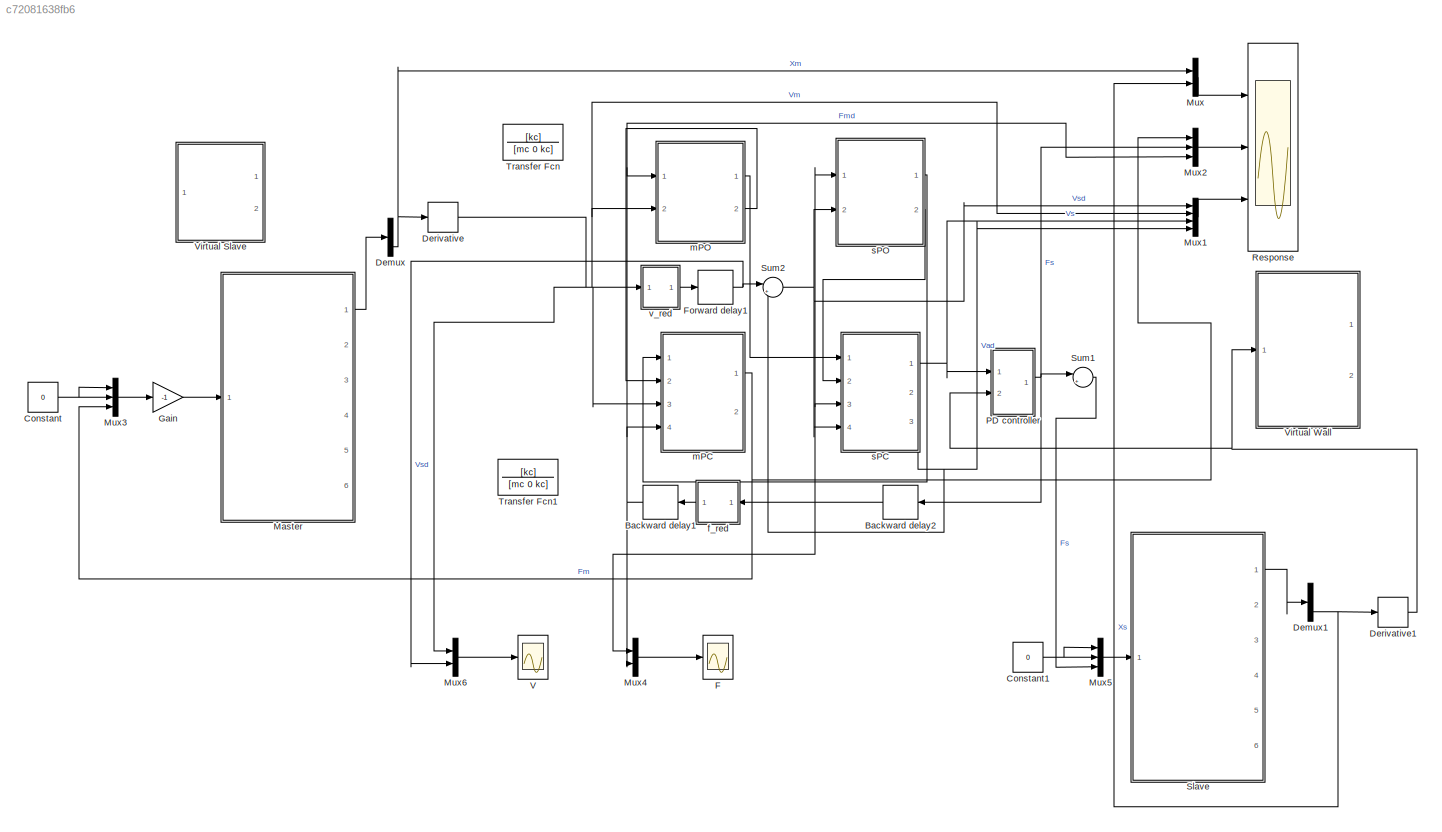
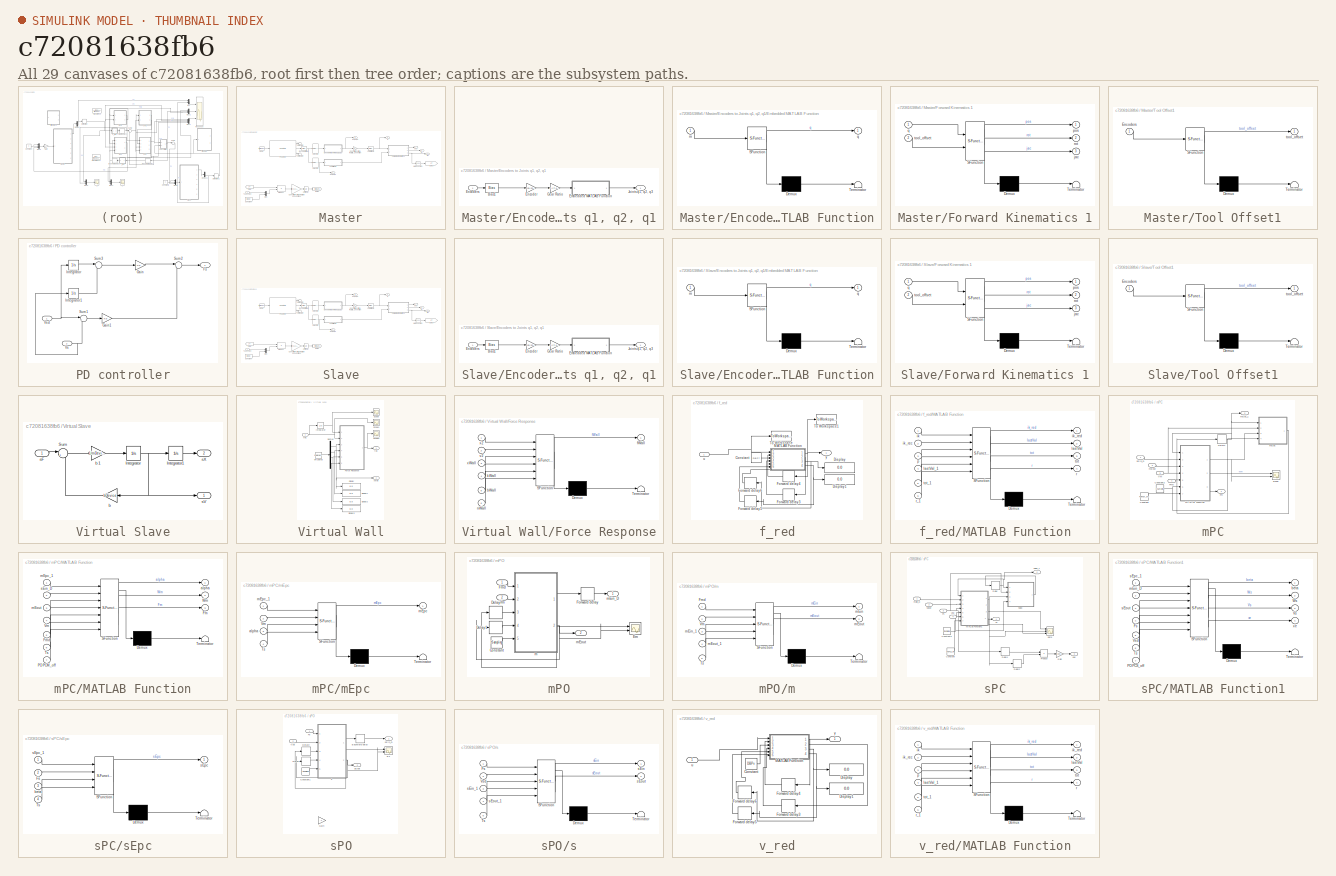
[diagram: thumbnail index - all 29 canvases of the model, root first then tree order]
MODEL slx_c72081638fb6
KIND model
BLOCK [Delay] Backward delay1
  DelayLength = T2
  InitialCondition = 0
  InputPortMap = u0
  Ports = [1, 1]
  SampleTime = tSampling
BLOCK [Delay] Backward delay2
  DelayLength = 1
  InitialCondition = 0
  InputPortMap = u0
  Ports = [1, 1]
  SampleTime = tSampling
BLOCK [Constant] Constant
  Value = 0
BLOCK [Constant] Constant1
  Value = 0
BLOCK [Demux] Demux
  DisplayOption = bar
  Outputs = 3
  Ports = [1, 3]
BLOCK [Demux] Demux1
  DisplayOption = bar
  Outputs = 3
  Ports = [1, 3]
BLOCK [Derivative] Derivative
BLOCK [Derivative] Derivative1
BLOCK [Scope] F
  DataFormat = Array
  Decimation = 1
  Grid = on
  LimitDataPoints = off
  MaxDataPoints = 5000
  Ports = [1]
  SampleInput = off
  SampleTime = -1
  SaveName = F1
  SaveToWorkspace = off
  ShowLegends = on
  TickLabels = OneTimeTick
  TimeRange = 100
  YMax = 15.33258
  YMin = -4.35585
  ZoomMode = on
BLOCK [Delay] Forward delay1
  DelayLength = T1
  InitialCondition = 0
  InputPortMap = u0
  Ports = [1, 1]
  SampleTime = tSampling
BLOCK [Gain] Gain
  Gain = -1
  OutDataTypeStr = Inherit: Inherit via internal rule
  ParamDataTypeStr = Inherit: Inherit via internal rule
  SaturateOnIntegerOverflow = off
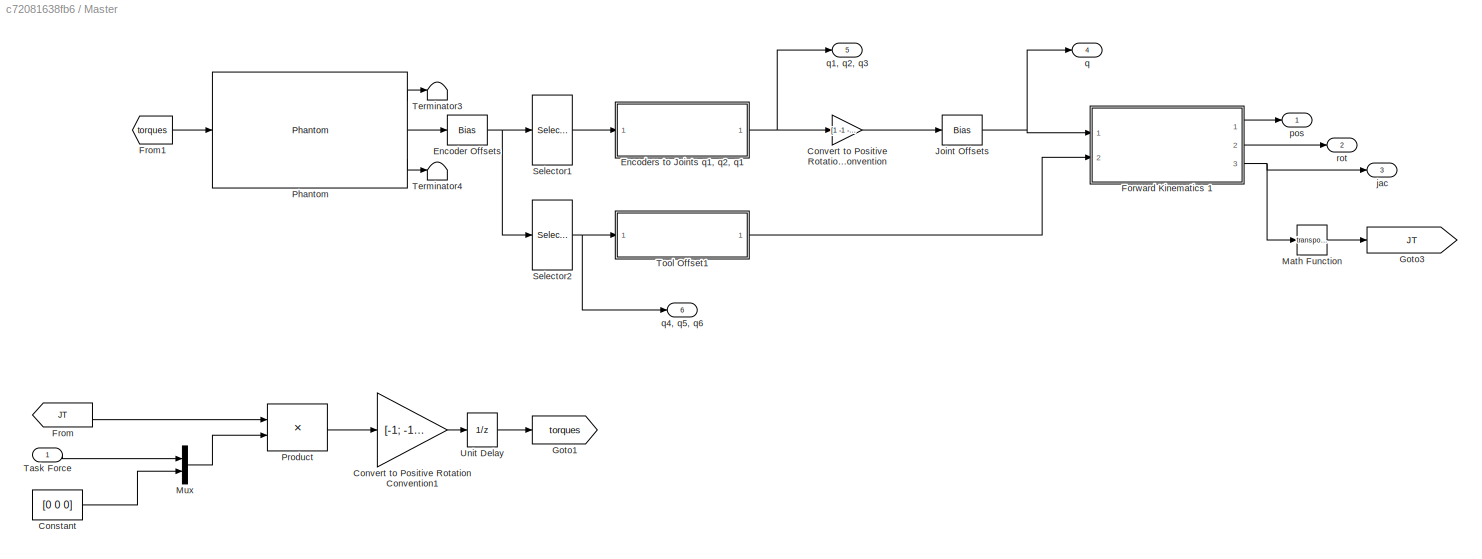
BLOCK [SubSystem] Master
  FunctionWithSeparateData = off
  MaskHideContents = off
  MinAlgLoopOccurrences = off
  Opaque = off
  Ports = [1, 6]
  PropExecContextOutsideSubsystem = off
  RTWSystemCode = Auto
  RequestExecContextInheritance = off
  Variant = off
BLOCK [Constant] Master/Constant
  Value = [0 0 0]
BLOCK [Gain] Master/Convert to Positive Rotation Convention
  Gain = [1 -1 -1]
  OutDataTypeStr = Inherit: Inherit via internal rule
  ParamDataTypeStr = Inherit: Inherit via internal rule
  SaturateOnIntegerOverflow = off
BLOCK [Gain] Master/Convert to Positive Rotation Convention1
  Gain = [-1; -1 ;-1]
  OutDataTypeStr = Inherit: Inherit via internal rule
  ParamDataTypeStr = Inherit: Inherit via internal rule
  SaturateOnIntegerOverflow = off
BLOCK [Bias] Master/Encoder Offsets
  Bias = [0 659 914 0 -1000 0]
  SaturateOnIntegerOverflow = off
BLOCK [SubSystem] Master/Encoders to Joints q1, q2, q1
  FunctionWithSeparateData = off
  MaskHideContents = off
  MinAlgLoopOccurrences = off
  Opaque = off
  Ports = [1, 1]
  PropExecContextOutsideSubsystem = off
  RTWSystemCode = Auto
  RequestExecContextInheritance = off
  Variant = off
BLOCK [Bias] Master/Encoders to Joints q1, q2, q1/Bias1
  Bias = [0 -659 -910]
  SaturateOnIntegerOverflow = off
BLOCK [SubSystem] Master/Encoders to Joints q1, q2, q1/Embedded MATLAB Function
  ErrorFcn = Stateflow.Translate.translate
  FunctionWithSeparateData = off
  MaskHideContents = off
  MinAlgLoopOccurrences = off
  Opaque = off
  PermitHierarchicalResolution = ParametersOnly
  Ports = [1, 1]
  PropExecContextOutsideSubsystem = off
  RTWSystemCode = Auto
  RequestExecContextInheritance = off
  SFBlockType = MATLAB Function
  TreatAsAtomicUnit = on
  Variant = off
BLOCK [Demux] Master/Encoders to Joints q1, q2, q1/Embedded MATLAB Function/ Demux 
  Outputs = 1
  Ports = [1, 1]
BLOCK [S-Function] Master/Encoders to Joints q1, q2, q1/Embedded MATLAB Function/ SFunction 
  EnableBusSupport = on
  FunctionName = sf_sfun
  PortCounts = [1 2]
  Ports = [1, 2]
  SFunctionDeploymentMode = off
  Tag = Stateflow S-Function TDPA_PD 10
BLOCK [Terminator] Master/Encoders to Joints q1, q2, q1/Embedded MATLAB Function/ Terminator 
BLOCK [Inport] Master/Encoders to Joints q1, q2, q1/Embedded MATLAB Function/m
  IconDisplay = Port number
BLOCK [Outport] Master/Encoders to Joints q1, q2, q1/Embedded MATLAB Function/q
  IconDisplay = Port number
BLOCK [Gain] Master/Encoders to Joints q1, q2, q1/Encoder
  Gain = 2*pi/2048
  OutDataTypeStr = Inherit: Inherit via internal rule
  ParamDataTypeStr = Inherit: Inherit via internal rule
  SaturateOnIntegerOverflow = off
BLOCK [Inport] Master/Encoders to Joints q1, q2, q1/Encoders
  IconDisplay = Port number
BLOCK [Gain] Master/Encoders to Joints q1, q2, q1/Gear Ratio
  Gain = 1./[7.461 -7.519 7.529]
  OutDataTypeStr = Inherit: Inherit via internal rule
  ParamDataTypeStr = Inherit: Inherit via internal rule
  SaturateOnIntegerOverflow = off
BLOCK [Outport] Master/Encoders to Joints q1, q2, q1/Joints q1, q2, q3
  IconDisplay = Port number
BLOCK [SubSystem] Master/Forward Kinematics 1
  ErrorFcn = Stateflow.Translate.translate
  FunctionWithSeparateData = off
  MaskHideContents = off
  MinAlgLoopOccurrences = off
  Opaque = off
  PermitHierarchicalResolution = ParametersOnly
  Ports = [2, 3]
  PropExecContextOutsideSubsystem = off
  RTWSystemCode = Auto
  RequestExecContextInheritance = off
  SFBlockType = MATLAB Function
  TreatAsAtomicUnit = on
  Variant = off
BLOCK [Demux] Master/Forward Kinematics 1/ Demux 
  Outputs = 1
  Ports = [1, 1]
BLOCK [S-Function] Master/Forward Kinematics 1/ SFunction 
  EnableBusSupport = on
  FunctionName = sf_sfun
  PortCounts = [2 4]
  Ports = [2, 4]
  SFunctionDeploymentMode = off
  Tag = Stateflow S-Function TDPA_PD 11
BLOCK [Terminator] Master/Forward Kinematics 1/ Terminator 
BLOCK [Outport] Master/Forward Kinematics 1/jac
  IconDisplay = Port number
  Port = 3
BLOCK [Outport] Master/Forward Kinematics 1/pos
  IconDisplay = Port number
BLOCK [Inport] Master/Forward Kinematics 1/q
  IconDisplay = Port number
BLOCK [Outport] Master/Forward Kinematics 1/rot
  IconDisplay = Port number
  Port = 2
BLOCK [Inport] Master/Forward Kinematics 1/tool_offset
  IconDisplay = Port number
  Port = 2
BLOCK [From] Master/From
  CloseFcn = tagdialog Close
  GotoTag = JT
BLOCK [From] Master/From1
  CloseFcn = tagdialog Close
  GotoTag = torques
BLOCK [Goto] Master/Goto1
  GotoTag = torques
BLOCK [Goto] Master/Goto3
  GotoTag = JT
BLOCK [Bias] Master/Joint Offsets
  Bias = [0 0 pi()/2]
  SaturateOnIntegerOverflow = off
BLOCK [Math] Master/Math Function
  Operator = transpose
  Ports = [1, 1]
BLOCK [Mux] Master/Mux
  DisplayOption = bar
  Inputs = 2
  Ports = [2, 1]
BLOCK [Reference] Master/Phantom  REF=quarc_library/Devices/Third-Party/SensAble/Phantom/Phantom
  AttributesFormatString = (%<device_name>)
  Ports = [1, 3]
  SourceBlock = quarc_library/Devices/Third-Party/SensAble/Phantom/Phantom
  SourceType = Phantom
  device_name = Master
  input_type = Joint space
  is_7dof = off
  output_type = Encoders Values
  sample_time = -1
  velocity_limit = 1200
  velocity_limit_option = on
BLOCK [Product] Master/Product
  InputSameDT = off
  Multiplication = Matrix(*)
  OutDataTypeStr = Inherit: Inherit via internal rule
  Ports = [2, 1]
  SaturateOnIntegerOverflow = off
BLOCK [Selector] Master/Selector1
  IndexOptions = Index vector (dialog)
  Indices = [1:3]
  InputPortWidth = 6
  OutputSizes = 1
  Ports = [1, 1]
BLOCK [Selector] Master/Selector2
  IndexOptions = Index vector (dialog)
  Indices = [4:6]
  InputPortWidth = 6
  OutputSizes = 1
  Ports = [1, 1]
BLOCK [Inport] Master/Task Force
  IconDisplay = Port number
BLOCK [Terminator] Master/Terminator3
BLOCK [Terminator] Master/Terminator4
BLOCK [SubSystem] Master/Tool Offset1
  ErrorFcn = Stateflow.Translate.translate
  FunctionWithSeparateData = off
  MaskHideContents = off
  MinAlgLoopOccurrences = off
  Opaque = off
  PermitHierarchicalResolution = ParametersOnly
  Ports = [1, 1]
  PropExecContextOutsideSubsystem = off
  RTWSystemCode = Auto
  RequestExecContextInheritance = off
  SFBlockType = MATLAB Function
  TreatAsAtomicUnit = on
  Variant = off
BLOCK [Demux] Master/Tool Offset1/ Demux 
  Outputs = 1
  Ports = [1, 1]
BLOCK [S-Function] Master/Tool Offset1/ SFunction 
  EnableBusSupport = on
  FunctionName = sf_sfun
  PortCounts = [1 2]
  Ports = [1, 2]
  SFunctionDeploymentMode = off
  Tag = Stateflow S-Function TDPA_PD 12
BLOCK [Terminator] Master/Tool Offset1/ Terminator 
BLOCK [Inport] Master/Tool Offset1/Encoders
  IconDisplay = Port number
BLOCK [Outport] Master/Tool Offset1/tool_offset
  IconDisplay = Port number
BLOCK [UnitDelay] Master/Unit Delay
  InputProcessing = Elements as channels (sample based)
  SampleTime = -1
BLOCK [Outport] Master/jac
  IconDisplay = Port number
  Port = 3
BLOCK [Outport] Master/pos
  IconDisplay = Port number
BLOCK [Outport] Master/q
  IconDisplay = Port number
  Port = 4
BLOCK [Outport] Master/q1, q2, q3
  IconDisplay = Port number
  Port = 5
BLOCK [Outport] Master/q4, q5, q6
  IconDisplay = Port number
  Port = 6
BLOCK [Outport] Master/rot
  IconDisplay = Port number
  Port = 2
BLOCK [Mux] Mux
  DisplayOption = bar
  Inputs = 2
  Ports = [2, 1]
BLOCK [Mux] Mux1
  DisplayOption = bar
  Ports = [4, 1]
BLOCK [Mux] Mux2
  DisplayOption = bar
  Inputs = 3
  Ports = [3, 1]
BLOCK [Mux] Mux3
  DisplayOption = bar
  Inputs = 3
  Ports = [3, 1]
BLOCK [Mux] Mux4
  DisplayOption = bar
  Inputs = 2
  Ports = [2, 1]
BLOCK [Mux] Mux5
  DisplayOption = bar
  Inputs = 3
  Ports = [3, 1]
BLOCK [Mux] Mux6
  DisplayOption = bar
  Inputs = 2
  Ports = [2, 1]
BLOCK [SubSystem] PD controller
  FunctionWithSeparateData = off
  MaskHideContents = off
  MinAlgLoopOccurrences = off
  Opaque = off
  Ports = [2, 1]
  PropExecContextOutsideSubsystem = off
  RTWSystemCode = Auto
  RequestExecContextInheritance = off
  Variant = off
BLOCK [Outport] PD controller/Fs
  IconDisplay = Port number
BLOCK [Gain] PD controller/Gain
  Gain = Kp
  OutDataTypeStr = Inherit: Inherit via internal rule
  ParamDataTypeStr = Inherit: Inherit via internal rule
  SaturateOnIntegerOverflow = off
BLOCK [Gain] PD controller/Gain1
  Gain = Kd
  OutDataTypeStr = Inherit: Inherit via internal rule
  ParamDataTypeStr = Inherit: Inherit via internal rule
  SaturateOnIntegerOverflow = off
BLOCK [Integrator] PD controller/Integrator
  Ports = [1, 1]
BLOCK [Integrator] PD controller/Integrator1
  Ports = [1, 1]
BLOCK [Sum] PD controller/Sum1
  IconShape = round
  InputSameDT = off
  Inputs = |+-
  OutDataTypeStr = Inherit: Inherit via internal rule
  Ports = [2, 1]
  SaturateOnIntegerOverflow = off
BLOCK [Sum] PD controller/Sum2
  IconShape = round
  InputSameDT = off
  Inputs = |++
  OutDataTypeStr = Inherit: Inherit via internal rule
  Ports = [2, 1]
  SaturateOnIntegerOverflow = off
BLOCK [Sum] PD controller/Sum3
  IconShape = round
  InputSameDT = off
  Inputs = |+-
  OutDataTypeStr = Inherit: Inherit via internal rule
  Ports = [2, 1]
  SaturateOnIntegerOverflow = off
BLOCK [Inport] PD controller/Vs
  IconDisplay = Port number
  Port = 2
BLOCK [Inport] PD controller/Vsd
  IconDisplay = Port number
BLOCK [Scope] Response
  DataFormat = StructureWithTime
  Decimation = 10
  Grid = on
  LimitDataPoints = off
  MaxDataPoints = 5000
  NumInputPorts = 3
  Ports = [3]
  SampleInput = on
  SampleTime = 0
  SaveName = ScopeData2
  SaveToWorkspace = off
  ShowLegends = on
  TickLabels = OneTimeTick
  TimeRange = 3.624844027539234
  YMax = 0.14159~14.48477~6.94419
  YMin = -0.20269~-3.66024~-1.75917
  ZoomMode = on
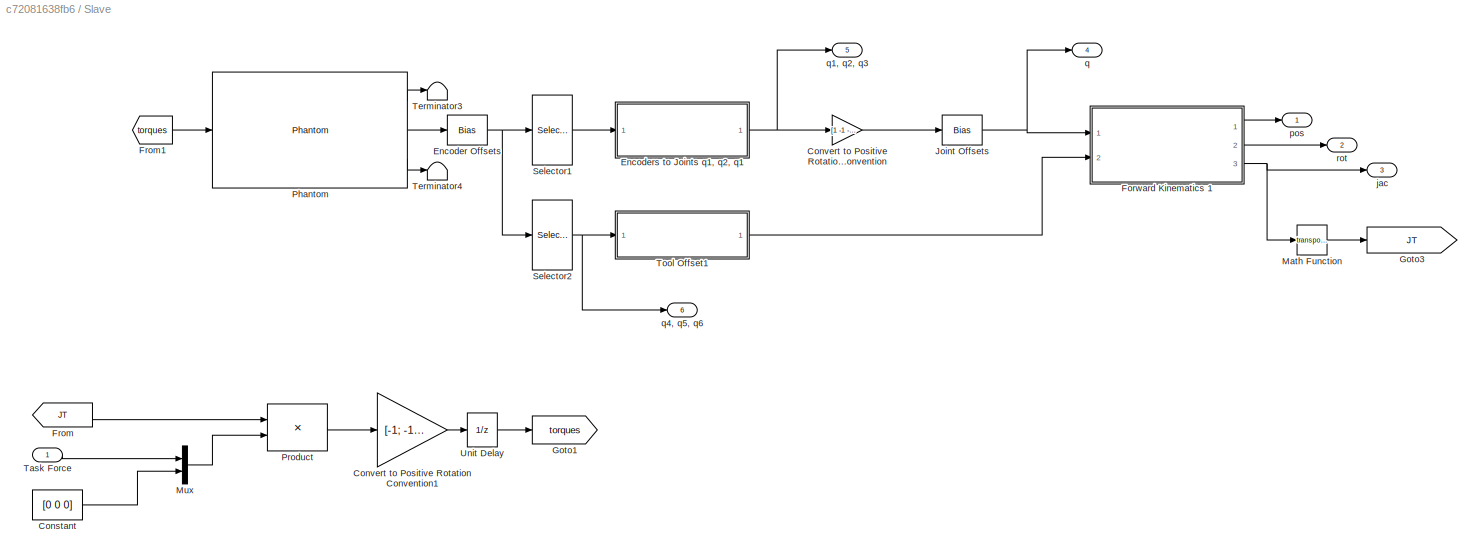
BLOCK [SubSystem] Slave
  FunctionWithSeparateData = off
  MaskHideContents = off
  MinAlgLoopOccurrences = off
  Opaque = off
  Ports = [1, 6]
  PropExecContextOutsideSubsystem = off
  RTWSystemCode = Auto
  RequestExecContextInheritance = off
  Variant = off
BLOCK [Constant] Slave/Constant
  Value = [0 0 0]
BLOCK [Gain] Slave/Convert to Positive Rotation Convention
  Gain = [1 -1 -1]
  OutDataTypeStr = Inherit: Inherit via internal rule
  ParamDataTypeStr = Inherit: Inherit via internal rule
  SaturateOnIntegerOverflow = off
BLOCK [Gain] Slave/Convert to Positive Rotation Convention1
  Gain = [-1; -1 ;-1]
  OutDataTypeStr = Inherit: Inherit via internal rule
  ParamDataTypeStr = Inherit: Inherit via internal rule
  SaturateOnIntegerOverflow = off
BLOCK [Bias] Slave/Encoder Offsets
  Bias = [0 659 914 0 -1000 0]
  SaturateOnIntegerOverflow = off
BLOCK [SubSystem] Slave/Encoders to Joints q1, q2, q1
  FunctionWithSeparateData = off
  MaskHideContents = off
  MinAlgLoopOccurrences = off
  Opaque = off
  Ports = [1, 1]
  PropExecContextOutsideSubsystem = off
  RTWSystemCode = Auto
  RequestExecContextInheritance = off
  Variant = off
BLOCK [Bias] Slave/Encoders to Joints q1, q2, q1/Bias1
  Bias = [0 -659 -910]
  SaturateOnIntegerOverflow = off
BLOCK [SubSystem] Slave/Encoders to Joints q1, q2, q1/Embedded MATLAB Function
  ErrorFcn = Stateflow.Translate.translate
  FunctionWithSeparateData = off
  MaskHideContents = off
  MinAlgLoopOccurrences = off
  Opaque = off
  PermitHierarchicalResolution = ParametersOnly
  Ports = [1, 1]
  PropExecContextOutsideSubsystem = off
  RTWSystemCode = Auto
  RequestExecContextInheritance = off
  SFBlockType = MATLAB Function
  TreatAsAtomicUnit = on
  Variant = off
BLOCK [Demux] Slave/Encoders to Joints q1, q2, q1/Embedded MATLAB Function/ Demux 
  Outputs = 1
  Ports = [1, 1]
BLOCK [S-Function] Slave/Encoders to Joints q1, q2, q1/Embedded MATLAB Function/ SFunction 
  EnableBusSupport = on
  FunctionName = sf_sfun
  PortCounts = [1 2]
  Ports = [1, 2]
  SFunctionDeploymentMode = off
  Tag = Stateflow S-Function TDPA_PD 3
BLOCK [Terminator] Slave/Encoders to Joints q1, q2, q1/Embedded MATLAB Function/ Terminator 
BLOCK [Inport] Slave/Encoders to Joints q1, q2, q1/Embedded MATLAB Function/m
  IconDisplay = Port number
BLOCK [Outport] Slave/Encoders to Joints q1, q2, q1/Embedded MATLAB Function/q
  IconDisplay = Port number
BLOCK [Gain] Slave/Encoders to Joints q1, q2, q1/Encoder
  Gain = 2*pi/2048
  OutDataTypeStr = Inherit: Inherit via internal rule
  ParamDataTypeStr = Inherit: Inherit via internal rule
  SaturateOnIntegerOverflow = off
BLOCK [Inport] Slave/Encoders to Joints q1, q2, q1/Encoders
  IconDisplay = Port number
BLOCK [Gain] Slave/Encoders to Joints q1, q2, q1/Gear Ratio
  Gain = 1./[7.461 -7.519 7.529]
  OutDataTypeStr = Inherit: Inherit via internal rule
  ParamDataTypeStr = Inherit: Inherit via internal rule
  SaturateOnIntegerOverflow = off
BLOCK [Outport] Slave/Encoders to Joints q1, q2, q1/Joints q1, q2, q3
  IconDisplay = Port number
BLOCK [SubSystem] Slave/Forward Kinematics 1
  ErrorFcn = Stateflow.Translate.translate
  FunctionWithSeparateData = off
  MaskHideContents = off
  MinAlgLoopOccurrences = off
  Opaque = off
  PermitHierarchicalResolution = ParametersOnly
  Ports = [2, 3]
  PropExecContextOutsideSubsystem = off
  RTWSystemCode = Auto
  RequestExecContextInheritance = off
  SFBlockType = MATLAB Function
  TreatAsAtomicUnit = on
  Variant = off
BLOCK [Demux] Slave/Forward Kinematics 1/ Demux 
  Outputs = 1
  Ports = [1, 1]
BLOCK [S-Function] Slave/Forward Kinematics 1/ SFunction 
  EnableBusSupport = on
  FunctionName = sf_sfun
  PortCounts = [2 4]
  Ports = [2, 4]
  SFunctionDeploymentMode = off
  Tag = Stateflow S-Function TDPA_PD 9
BLOCK [Terminator] Slave/Forward Kinematics 1/ Terminator 
BLOCK [Outport] Slave/Forward Kinematics 1/jac
  IconDisplay = Port number
  Port = 3
BLOCK [Outport] Slave/Forward Kinematics 1/pos
  IconDisplay = Port number
BLOCK [Inport] Slave/Forward Kinematics 1/q
  IconDisplay = Port number
BLOCK [Outport] Slave/Forward Kinematics 1/rot
  IconDisplay = Port number
  Port = 2
BLOCK [Inport] Slave/Forward Kinematics 1/tool_offset
  IconDisplay = Port number
  Port = 2
BLOCK [From] Slave/From
  CloseFcn = tagdialog Close
  GotoTag = JT
BLOCK [From] Slave/From1
  CloseFcn = tagdialog Close
  GotoTag = torques
BLOCK [Goto] Slave/Goto1
  GotoTag = torques
BLOCK [Goto] Slave/Goto3
  GotoTag = JT
BLOCK [Bias] Slave/Joint Offsets
  Bias = [0 0 pi()/2]
  SaturateOnIntegerOverflow = off
BLOCK [Math] Slave/Math Function
  Operator = transpose
  Ports = [1, 1]
BLOCK [Mux] Slave/Mux
  DisplayOption = bar
  Inputs = 2
  Ports = [2, 1]
BLOCK [Reference] Slave/Phantom  REF=quarc_library/Devices/Third-Party/SensAble/Phantom/Phantom
  AttributesFormatString = (%<device_name>)
  Ports = [1, 3]
  SourceBlock = quarc_library/Devices/Third-Party/SensAble/Phantom/Phantom
  SourceType = Phantom
  device_name = Slave
  input_type = Joint space
  is_7dof = off
  output_type = Encoders Values
  sample_time = -1
  velocity_limit = 1200
  velocity_limit_option = on
BLOCK [Product] Slave/Product
  InputSameDT = off
  Multiplication = Matrix(*)
  OutDataTypeStr = Inherit: Inherit via internal rule
  Ports = [2, 1]
  SaturateOnIntegerOverflow = off
BLOCK [Selector] Slave/Selector1
  IndexOptions = Index vector (dialog)
  Indices = [1:3]
  InputPortWidth = 6
  OutputSizes = 1
  Ports = [1, 1]
BLOCK [Selector] Slave/Selector2
  IndexOptions = Index vector (dialog)
  Indices = [4:6]
  InputPortWidth = 6
  OutputSizes = 1
  Ports = [1, 1]
BLOCK [Inport] Slave/Task Force
  IconDisplay = Port number
BLOCK [Terminator] Slave/Terminator3
BLOCK [Terminator] Slave/Terminator4
BLOCK [SubSystem] Slave/Tool Offset1
  ErrorFcn = Stateflow.Translate.translate
  FunctionWithSeparateData = off
  MaskHideContents = off
  MinAlgLoopOccurrences = off
  Opaque = off
  PermitHierarchicalResolution = ParametersOnly
  Ports = [1, 1]
  PropExecContextOutsideSubsystem = off
  RTWSystemCode = Auto
  RequestExecContextInheritance = off
  SFBlockType = MATLAB Function
  TreatAsAtomicUnit = on
  Variant = off
BLOCK [Demux] Slave/Tool Offset1/ Demux 
  Outputs = 1
  Ports = [1, 1]
BLOCK [S-Function] Slave/Tool Offset1/ SFunction 
  EnableBusSupport = on
  FunctionName = sf_sfun
  PortCounts = [1 2]
  Ports = [1, 2]
  SFunctionDeploymentMode = off
  Tag = Stateflow S-Function TDPA_PD 13
BLOCK [Terminator] Slave/Tool Offset1/ Terminator 
BLOCK [Inport] Slave/Tool Offset1/Encoders
  IconDisplay = Port number
BLOCK [Outport] Slave/Tool Offset1/tool_offset
  IconDisplay = Port number
BLOCK [UnitDelay] Slave/Unit Delay
  InputProcessing = Elements as channels (sample based)
  SampleTime = -1
BLOCK [Outport] Slave/jac
  IconDisplay = Port number
  Port = 3
BLOCK [Outport] Slave/pos
  IconDisplay = Port number
BLOCK [Outport] Slave/q
  IconDisplay = Port number
  Port = 4
BLOCK [Outport] Slave/q1, q2, q3
  IconDisplay = Port number
  Port = 5
BLOCK [Outport] Slave/q4, q5, q6
  IconDisplay = Port number
  Port = 6
BLOCK [Outport] Slave/rot
  IconDisplay = Port number
  Port = 2
BLOCK [Sum] Sum1
  IconShape = round
  InputSameDT = off
  Inputs = |++
  OutDataTypeStr = Inherit: Inherit via internal rule
  Ports = [2, 1]
  SampleTime = tSampling
  SaturateOnIntegerOverflow = off
BLOCK [Sum] Sum2
  IconShape = round
  InputSameDT = off
  Inputs = |++
  OutDataTypeStr = Inherit: Inherit via internal rule
  Ports = [2, 1]
  SaturateOnIntegerOverflow = off
BLOCK [TransferFcn] Transfer Fcn
  Denominator = [mc 0 kc]
  Numerator = [kc]
BLOCK [TransferFcn] Transfer Fcn1
  Denominator = [mc 0 kc]
  Numerator = [kc]
BLOCK [Scope] V
  DataFormat = Array
  Decimation = 1
  Grid = on
  LimitDataPoints = off
  MaxDataPoints = 5000
  Ports = [1]
  SampleInput = off
  SampleTime = -1
  SaveName = F
  SaveToWorkspace = off
  ShowLegends = on
  TickLabels = OneTimeTick
  TimeRange = 100
  YMax = 1.02242
  YMin = -1.10119
  ZoomMode = on
BLOCK [SubSystem] Virtual Slave
  FunctionWithSeparateData = off
  MaskHideContents = off
  MinAlgLoopOccurrences = off
  Opaque = off
  Ports = [1, 2]
  PropExecContextOutsideSubsystem = off
  RTWSystemCode = Auto
  RequestExecContextInheritance = off
  Variant = off
BLOCK [Integrator] Virtual Slave/Integrator
  LowerSaturationLimit = -10
  Ports = [1, 1]
  UpperSaturationLimit = 10
BLOCK [Integrator] Virtual Slave/Integrator1
  LowerSaturationLimit = -10
  Ports = [1, 1]
  UpperSaturationLimit = 10
BLOCK [Sum] Virtual Slave/Sum
  IconShape = round
  InputSameDT = off
  Inputs = |+-
  OutDataTypeStr = Inherit: Inherit via internal rule
  Ports = [2, 1]
  SaturateOnIntegerOverflow = off
BLOCK [Gain] Virtual Slave/b 
  Gain = bDevice
  OutDataTypeStr = Inherit: Inherit via internal rule
  ParamDataTypeStr = Inherit: Inherit via internal rule
  SaturateOnIntegerOverflow = off
BLOCK [Gain] Virtual Slave/b 1
  Gain = 1/mDevice
  OutDataTypeStr = Inherit: Inherit via internal rule
  ParamDataTypeStr = Inherit: Inherit via internal rule
  SaturateOnIntegerOverflow = off
BLOCK [Inport] Virtual Slave/sF
  IconDisplay = Port number
BLOCK [Outport] Virtual Slave/sV
  IconDisplay = Port number
BLOCK [Outport] Virtual Slave/sX
  IconDisplay = Port number
  Port = 2
BLOCK [SubSystem] Virtual Wall
  FunctionWithSeparateData = off
  MaskHideContents = off
  MinAlgLoopOccurrences = off
  Opaque = off
  Ports = [1, 2]
  PropExecContextOutsideSubsystem = off
  RTWSystemCode = Auto
  RequestExecContextInheritance = off
  Variant = off
BLOCK [Demux] Virtual Wall/Demux
  DisplayOption = bar
  Ports = [1, 4]
BLOCK [Display] Virtual Wall/Display
  Decimation = 1
  Ports = [1]
BLOCK [Display] Virtual Wall/Display1
  Decimation = 1
  Ports = [1]
BLOCK [Display] Virtual Wall/Display2
  Decimation = 1
  Ports = [1]
BLOCK [Display] Virtual Wall/Display3
  Decimation = 1
  Ports = [1]
BLOCK [SubSystem] Virtual Wall/Force Response
  ErrorFcn = Stateflow.Translate.translate
  FunctionWithSeparateData = off
  MaskHideContents = off
  MinAlgLoopOccurrences = off
  Opaque = off
  PermitHierarchicalResolution = ParametersOnly
  Ports = [6, 1]
  PropExecContextOutsideSubsystem = off
  RTWSystemCode = Auto
  RequestExecContextInheritance = off
  SFBlockType = MATLAB Function
  TreatAsAtomicUnit = on
  Variant = off
BLOCK [Demux] Virtual Wall/Force Response/ Demux 
  Outputs = 1
  Ports = [1, 1]
BLOCK [S-Function] Virtual Wall/Force Response/ SFunction 
  EnableBusSupport = on
  FunctionName = sf_sfun
  PortCounts = [6 2]
  Ports = [6, 2]
  SFunctionDeploymentMode = off
  Tag = Stateflow S-Function TDPA_PD 8
BLOCK [Terminator] Virtual Wall/Force Response/ Terminator 
BLOCK [Inport] Virtual Wall/Force Response/bWall
  IconDisplay = Port number
  Port = 5
BLOCK [Outport] Virtual Wall/Force Response/fWall
  IconDisplay = Port number
BLOCK [Inport] Virtual Wall/Force Response/kWall
  IconDisplay = Port number
  Port = 4
BLOCK [Inport] Virtual Wall/Force Response/nWall
  IconDisplay = Port number
  Port = 6
BLOCK [Inport] Virtual Wall/Force Response/v2
  IconDisplay = Port number
  Port = 2
BLOCK [Inport] Virtual Wall/Force Response/x2
  IconDisplay = Port number
BLOCK [Inport] Virtual Wall/Force Response/xWall
  IconDisplay = Port number
  Port = 3
BLOCK [Integrator] Virtual Wall/Integrator
  Ports = [1, 1]
BLOCK [Scope] Virtual Wall/Scope
  DataFormat = StructureWithTime
  Decimation = 1
  Grid = on
  LimitDataPoints = off
  MaxDataPoints = 5000
  Ports = [1]
  SampleInput = off
  SampleTime = -1
  SaveName = ScopeData8
  SaveToWorkspace = off
  ShowLegends = off
  TickLabels = OneTimeTick
  TimeRange = auto
  YMax = 10
  YMin = -10
  ZoomMode = yonly
BLOCK [Scope] Virtual Wall/Scope1
  DataFormat = StructureWithTime
  Decimation = 1
  Grid = on
  LimitDataPoints = off
  MaxDataPoints = 5000
  Ports = [1]
  SampleInput = off
  SampleTime = -1
  SaveName = ScopeData9
  SaveToWorkspace = off
  ShowLegends = off
  TickLabels = OneTimeTick
  TimeRange = auto
  YMax = 10
  YMin = -10
  ZoomMode = on
BLOCK [Scope] Virtual Wall/Scope2
  DataFormat = StructureWithTime
  Decimation = 1
  Grid = on
  LimitDataPoints = off
  MaxDataPoints = 5000
  Ports = [1]
  SampleInput = off
  SampleTime = -1
  SaveName = ScopeData11
  SaveToWorkspace = off
  ShowLegends = off
  TickLabels = OneTimeTick
  TimeRange = auto
  YMax = 10
  YMin = -10
  ZoomMode = on
BLOCK [Constant] Virtual Wall/VirtualWall
  Value = [xWall kWall bWall nWall]
  VectorParams1D = off
BLOCK [Outport] Virtual Wall/fVE
  IconDisplay = Port number
BLOCK [Inport] Virtual Wall/vVE
  IconDisplay = Port number
BLOCK [Outport] Virtual Wall/xWall
  IconDisplay = Port number
  Port = 2
BLOCK [SubSystem] f_red
  FunctionWithSeparateData = off
  MaskHideContents = off
  MinAlgLoopOccurrences = off
  Opaque = off
  Ports = [1, 1]
  PropExecContextOutsideSubsystem = off
  RTWSystemCode = Auto
  RequestExecContextInheritance = off
  Variant = off
BLOCK [Constant] f_red/Constant
  Value = DBPf
BLOCK [Display] f_red/Display
  Decimation = 1
  Format = long
  Ports = [1]
BLOCK [Display] f_red/Display1
  Decimation = 1
  Format = long
  Ports = [1]
BLOCK [Delay] f_red/Forward delay3
  DelayLength = 1
  InitialCondition = 0
  InputPortMap = u0
  InputProcessing = Inherited
  Ports = [1, 1]
  SampleTime = tSampling
BLOCK [Delay] f_red/Forward delay4
  DelayLength = 1
  InitialCondition = 0
  InputPortMap = u0
  InputProcessing = Inherited
  Ports = [1, 1]
  SampleTime = tSampling
BLOCK [Delay] f_red/Forward delay5
  DelayLength = 1
  InitialCondition = 0
  InputPortMap = u0
  InputProcessing = Inherited
  Ports = [1, 1]
  SampleTime = tSampling
BLOCK [Delay] f_red/Forward delay6
  DelayLength = 1
  InitialCondition = 0
  InputPortMap = u0
  InputProcessing = Inherited
  Ports = [1, 1]
  SampleTime = tSampling
BLOCK [SubSystem] f_red/MATLAB Function
  ErrorFcn = Stateflow.Translate.translate
  FunctionWithSeparateData = off
  MaskHideContents = off
  MinAlgLoopOccurrences = off
  Opaque = off
  PermitHierarchicalResolution = ParametersOnly
  Ports = [6, 4]
  PropExecContextOutsideSubsystem = off
  RTWSystemCode = Auto
  RequestExecContextInheritance = off
  SFBlockType = MATLAB Function
  TreatAsAtomicUnit = on
  Variant = off
BLOCK [Demux] f_red/MATLAB Function/ Demux 
  Outputs = 1
  Ports = [1, 1]
BLOCK [S-Function] f_red/MATLAB Function/ SFunction 
  EnableBusSupport = on
  FunctionName = sf_sfun
  PortCounts = [6 5]
  Ports = [6, 5]
  SFunctionDeploymentMode = off
  Tag = Stateflow S-Function TDPA_PD 15
BLOCK [Terminator] f_red/MATLAB Function/ Terminator 
BLOCK [Inport] f_red/MATLAB Function/ik
  IconDisplay = Port number
BLOCK [Inport] f_red/MATLAB Function/ik_rec
  IconDisplay = Port number
  Port = 2
BLOCK [Outport] f_red/MATLAB Function/ik_red
  IconDisplay = Port number
BLOCK [Outport] f_red/MATLAB Function/lastVal
  IconDisplay = Port number
  Port = 2
BLOCK [Inport] f_red/MATLAB Function/lastVal_1
  IconDisplay = Port number
  Port = 4
BLOCK [Inport] f_red/MATLAB Function/p
  IconDisplay = Port number
  Port = 3
BLOCK [Outport] f_red/MATLAB Function/r
  IconDisplay = Port number
  Port = 4
BLOCK [Inport] f_red/MATLAB Function/r_1
  IconDisplay = Port number
  Port = 6
BLOCK [Outport] f_red/MATLAB Function/tot
  IconDisplay = Port number
  Port = 3
BLOCK [Inport] f_red/MATLAB Function/tot_1
  IconDisplay = Port number
  Port = 5
BLOCK [ToWorkspace] f_red/To Workspace
  MaxDataPoints = inf
  Ports = [1]
  SampleTime = -1
  SaveFormat = Timeseries
  VariableName = in
BLOCK [ToWorkspace] f_red/To Workspace1
  MaxDataPoints = inf
  Ports = [1]
  SampleTime = -1
  SaveFormat = Timeseries
  VariableName = reduced
BLOCK [Inport] f_red/u
  IconDisplay = Port number
BLOCK [Outport] f_red/y
  IconDisplay = Port number
BLOCK [SubSystem] mPC
  FunctionWithSeparateData = off
  MaskHideContents = off
  MinAlgLoopOccurrences = off
  Opaque = off
  Ports = [4, 2]
  PropExecContextOutsideSubsystem = off
  RTWSystemCode = Auto
  RequestExecContextInheritance = off
  Variant = off
BLOCK [Constant] mPC/Constant
  Value = POPCM_off
BLOCK [Constant] mPC/Constant2
  Value = tSampling
BLOCK [Delay] mPC/Delay1
  DelayLength = 1
  InitialCondition = 0
  InputPortMap = u0
  Ports = [1, 1]
BLOCK [Outport] mPC/Fm
  IconDisplay = Port number
BLOCK [Inport] mPC/Fmd
  IconDisplay = Port number
  Port = 4
BLOCK [SubSystem] mPC/MATLAB Function
  ErrorFcn = Stateflow.Translate.translate
  FunctionWithSeparateData = off
  MaskHideContents = off
  MinAlgLoopOccurrences = off
  Opaque = off
  PermitHierarchicalResolution = ParametersOnly
  Ports = [7, 3]
  PropExecContextOutsideSubsystem = off
  RTWSystemCode = Auto
  RequestExecContextInheritance = off
  SFBlockType = MATLAB Function
  TreatAsAtomicUnit = on
  Variant = off
BLOCK [Demux] mPC/MATLAB Function/ Demux 
  Outputs = 1
  Ports = [1, 1]
BLOCK [S-Function] mPC/MATLAB Function/ SFunction 
  EnableBusSupport = on
  FunctionName = sf_sfun
  PortCounts = [7 4]
  Ports = [7, 4]
  SFunctionDeploymentMode = off
  Tag = Stateflow S-Function TDPA_PD 6
BLOCK [Terminator] mPC/MATLAB Function/ Terminator 
BLOCK [Outport] mPC/MATLAB Function/Fm
  IconDisplay = Port number
  Port = 3
BLOCK [Inport] mPC/MATLAB Function/Fmd
  IconDisplay = Port number
  Port = 5
BLOCK [Inport] mPC/MATLAB Function/POPCM_off
  IconDisplay = Port number
  Port = 7
BLOCK [Inport] mPC/MATLAB Function/Ts
  IconDisplay = Port number
  Port = 6
BLOCK [Inport] mPC/MATLAB Function/Vm
  IconDisplay = Port number
  Port = 4
BLOCK [Outport] mPC/MATLAB Function/Wm
  IconDisplay = Port number
  Port = 2
BLOCK [Outport] mPC/MATLAB Function/alpha
  IconDisplay = Port number
BLOCK [Inport] mPC/MATLAB Function/mEout
  IconDisplay = Port number
  Port = 3
BLOCK [Inport] mPC/MATLAB Function/mEpc_1
  IconDisplay = Port number
BLOCK [Inport] mPC/MATLAB Function/sEin_D
  IconDisplay = Port number
  Port = 2
BLOCK [Inport] mPC/Vm
  IconDisplay = Port number
  Port = 3
BLOCK [Scope] mPC/alpha
  DataFormat = StructureWithTime
  Decimation = 1
  Grid = on
  LimitDataPoints = off
  MaxDataPoints = 5000
  NumInputPorts = 2
  Ports = [2]
  SampleInput = off
  SampleTime = -1
  SaveName = ScopeData3
  SaveToWorkspace = off
  ShowLegends = on
  TickLabels = OneTimeTick
  TimeRange = 10
  YMax = 8~3.5
  YMin = -1~0
  ZoomMode = on
BLOCK [Inport] mPC/mEout
  IconDisplay = Port number
  Port = 2
BLOCK [SubSystem] mPC/mEpc
  ErrorFcn = Stateflow.Translate.translate
  FunctionWithSeparateData = off
  MaskHideContents = off
  MinAlgLoopOccurrences = off
  Opaque = off
  PermitHierarchicalResolution = ParametersOnly
  Ports = [4, 1]
  PropExecContextOutsideSubsystem = off
  RTWSystemCode = Auto
  RequestExecContextInheritance = off
  SFBlockType = MATLAB Function
  TreatAsAtomicUnit = on
  Variant = off
BLOCK [Demux] mPC/mEpc/ Demux 
  Outputs = 1
  Ports = [1, 1]
BLOCK [S-Function] mPC/mEpc/ SFunction 
  EnableBusSupport = on
  FunctionName = sf_sfun
  PortCounts = [4 2]
  Ports = [4, 2]
  SFunctionDeploymentMode = off
  Tag = Stateflow S-Function TDPA_PD 5
BLOCK [Terminator] mPC/mEpc/ Terminator 
BLOCK [Inport] mPC/mEpc/Ts
  IconDisplay = Port number
  Port = 4
BLOCK [Inport] mPC/mEpc/Vm
  IconDisplay = Port number
  Port = 2
BLOCK [Inport] mPC/mEpc/alpha
  IconDisplay = Port number
  Port = 3
BLOCK [Outport] mPC/mEpc/mEpc
  IconDisplay = Port number
BLOCK [Inport] mPC/mEpc/mEpc_1
  IconDisplay = Port number
BLOCK [Outport] mPC/mEpc_1
  IconDisplay = Port number
  Port = 2
BLOCK [Inport] mPC/sEin_D
  IconDisplay = Port number
BLOCK [SubSystem] mPO
  FunctionWithSeparateData = off
  MaskHideContents = off
  MinAlgLoopOccurrences = off
  Opaque = off
  Ports = [2, 2]
  PropExecContextOutsideSubsystem = off
  RTWSystemCode = Auto
  RequestExecContextInheritance = off
  Variant = off
BLOCK [Constant] mPO/Constant
  Value = tSampling
BLOCK [Delay] mPO/Delay
  DelayLength = 1
  InitialCondition = 0
  InputPortMap = u0
  Ports = [1, 1]
  SampleTime = tSampling
BLOCK [Delay] mPO/Delay1
  DelayLength = 1
  InitialCondition = 0
  InputPortMap = u0
  Ports = [1, 1]
  SampleTime = tSampling
BLOCK [Scope] mPO/Em
  DataFormat = StructureWithTime
  Decimation = 1
  Grid = on
  LimitDataPoints = off
  MaxDataPoints = 5000
  NumInputPorts = 2
  Ports = [2]
  SampleInput = off
  SampleTime = -1
  SaveName = ScopeData
  SaveToWorkspace = off
  ShowLegends = on
  TickLabels = OneTimeTick
  TimeRange = auto
  YMax = 5~5
  YMin = -5~-5
  ZoomMode = on
BLOCK [Inport] mPO/Fmd
  IconDisplay = Port number
BLOCK [Delay] mPO/Forward delay
  DelayLength = T1
  InitialCondition = 0
  InputPortMap = u0
  Ports = [1, 1]
  SampleTime = tSampling
BLOCK [Inport] mPO/Vm
  IconDisplay = Port number
  Port = 2
BLOCK [SubSystem] mPO/m
  ErrorFcn = Stateflow.Translate.translate
  FunctionWithSeparateData = off
  MaskHideContents = off
  MinAlgLoopOccurrences = off
  Opaque = off
  PermitHierarchicalResolution = ParametersOnly
  Ports = [5, 2]
  PropExecContextOutsideSubsystem = off
  RTWSystemCode = Auto
  RequestExecContextInheritance = off
  SFBlockType = MATLAB Function
  TreatAsAtomicUnit = on
  Variant = off
BLOCK [Demux] mPO/m/ Demux 
  Outputs = 1
  Ports = [1, 1]
BLOCK [S-Function] mPO/m/ SFunction 
  EnableBusSupport = on
  FunctionName = sf_sfun
  PortCounts = [5 3]
  Ports = [5, 3]
  SFunctionDeploymentMode = off
  Tag = Stateflow S-Function TDPA_PD 2
BLOCK [Terminator] mPO/m/ Terminator 
BLOCK [Inport] mPO/m/Fmd
  IconDisplay = Port number
BLOCK [Inport] mPO/m/Ts
  IconDisplay = Port number
  Port = 5
BLOCK [Inport] mPO/m/Vm
  IconDisplay = Port number
  Port = 2
BLOCK [Outport] mPO/m/mEin
  IconDisplay = Port number
BLOCK [Inport] mPO/m/mEin_1
  IconDisplay = Port number
  Port = 3
BLOCK [Outport] mPO/m/mEout
  IconDisplay = Port number
  Port = 2
BLOCK [Inport] mPO/m/mEout_1
  IconDisplay = Port number
  Port = 4
BLOCK [Outport] mPO/mEin_D
  IconDisplay = Port number
BLOCK [Outport] mPO/mEout
  IconDisplay = Port number
  Port = 2
BLOCK [SubSystem] sPC
  FunctionWithSeparateData = off
  MaskHideContents = off
  MinAlgLoopOccurrences = off
  Opaque = off
  Ports = [4, 3]
  PropExecContextOutsideSubsystem = off
  RTWSystemCode = Auto
  RequestExecContextInheritance = off
  Variant = off
BLOCK [Constant] sPC/Constant
  Value = POPCS_off
BLOCK [Constant] sPC/Constant2
  Value = tSampling
BLOCK [Delay] sPC/Delay
  DelayLength = 1
  InitialCondition = 0
  InputPortMap = u0
  Ports = [1, 1]
BLOCK [Delay] sPC/Delay1
  DelayLength = 1
  InitialCondition = 0
  InputPortMap = u0
  Ports = [1, 1]
BLOCK [Delay] sPC/Delay2
  DelayLength = 1
  InitialCondition = 0
  InputPortMap = u0
  Ports = [1, 1]
BLOCK [Inport] sPC/Fs
  IconDisplay = Port number
  Port = 3
BLOCK [Gain] sPC/Gain
  Gain = pos
  OutDataTypeStr = Inherit: Inherit via internal rule
  ParamDataTypeStr = Inherit: Inherit via internal rule
  SaturateOnIntegerOverflow = off
BLOCK [SubSystem] sPC/MATLAB Function1
  ErrorFcn = Stateflow.Translate.translate
  FunctionWithSeparateData = off
  MaskHideContents = off
  MinAlgLoopOccurrences = off
  Opaque = off
  PermitHierarchicalResolution = ParametersOnly
  Ports = [7, 4]
  PropExecContextOutsideSubsystem = off
  RTWSystemCode = Auto
  RequestExecContextInheritance = off
  SFBlockType = MATLAB Function
  TreatAsAtomicUnit = on
  Variant = off
BLOCK [Demux] sPC/MATLAB Function1/ Demux 
  Outputs = 1
  Ports = [1, 1]
BLOCK [S-Function] sPC/MATLAB Function1/ SFunction 
  EnableBusSupport = on
  FunctionName = sf_sfun
  PortCounts = [7 5]
  Ports = [7, 5]
  SFunctionDeploymentMode = off
  Tag = Stateflow S-Function TDPA_PD 7
BLOCK [Terminator] sPC/MATLAB Function1/ Terminator 
BLOCK [Inport] sPC/MATLAB Function1/Fs
  IconDisplay = Port number
  Port = 4
BLOCK [Inport] sPC/MATLAB Function1/POPCS_off
  IconDisplay = Port number
  Port = 7
BLOCK [Inport] sPC/MATLAB Function1/Ts
  IconDisplay = Port number
  Port = 6
BLOCK [Outport] sPC/MATLAB Function1/Vs
  IconDisplay = Port number
  Port = 3
BLOCK [Inport] sPC/MATLAB Function1/Vsd
  IconDisplay = Port number
  Port = 5
BLOCK [Outport] sPC/MATLAB Function1/Ws
  IconDisplay = Port number
  Port = 2
BLOCK [Outport] sPC/MATLAB Function1/beta
  IconDisplay = Port number
BLOCK [Inport] sPC/MATLAB Function1/mEin_D
  IconDisplay = Port number
  Port = 2
BLOCK [Inport] sPC/MATLAB Function1/sEout
  IconDisplay = Port number
  Port = 3
BLOCK [Inport] sPC/MATLAB Function1/sEpc_1
  IconDisplay = Port number
BLOCK [Outport] sPC/MATLAB Function1/xe
  IconDisplay = Port number
  Port = 4
BLOCK [Product] sPC/Product
  InputSameDT = off
  OutDataTypeStr = Inherit: Inherit via internal rule
  Ports = [2, 1]
  RndMeth = Floor
  SaturateOnIntegerOverflow = off
BLOCK [Outport] sPC/Vad
  IconDisplay = Port number
  Port = 3
BLOCK [Outport] sPC/Vs
  IconDisplay = Port number
BLOCK [Inport] sPC/Vsd
  IconDisplay = Port number
  Port = 4
BLOCK [Scope] sPC/beta
  DataFormat = StructureWithTime
  Decimation = 1
  Grid = on
  LimitDataPoints = off
  MaxDataPoints = 5000
  NumInputPorts = 3
  Ports = [3]
  SampleInput = off
  SampleTime = -1
  SaveName = ScopeData4
  SaveToWorkspace = off
  ShowLegends = on
  TickLabels = OneTimeTick
  TimeRange = 8.70967741935484
  YMax = 2~14000~0.02514450867052043
  YMin = -8~0~-0.5736994219653178
  ZoomMode = on
BLOCK [Inport] sPC/mEin_D
  IconDisplay = Port number
BLOCK [Inport] sPC/sEout
  IconDisplay = Port number
  Port = 2
BLOCK [SubSystem] sPC/sEpc
  ErrorFcn = Stateflow.Translate.translate
  FunctionWithSeparateData = off
  MaskHideContents = off
  MinAlgLoopOccurrences = off
  Opaque = off
  PermitHierarchicalResolution = ParametersOnly
  Ports = [4, 1]
  PropExecContextOutsideSubsystem = off
  RTWSystemCode = Auto
  RequestExecContextInheritance = off
  SFBlockType = MATLAB Function
  TreatAsAtomicUnit = on
  Variant = off
BLOCK [Demux] sPC/sEpc/ Demux 
  Outputs = 1
  Ports = [1, 1]
BLOCK [S-Function] sPC/sEpc/ SFunction 
  EnableBusSupport = on
  FunctionName = sf_sfun
  PortCounts = [4 2]
  Ports = [4, 2]
  SFunctionDeploymentMode = off
  Tag = Stateflow S-Function TDPA_PD 4
BLOCK [Terminator] sPC/sEpc/ Terminator 
BLOCK [Inport] sPC/sEpc/Fs
  IconDisplay = Port number
  Port = 2
BLOCK [Inport] sPC/sEpc/Ts
  IconDisplay = Port number
  Port = 4
BLOCK [Inport] sPC/sEpc/beta
  IconDisplay = Port number
  Port = 3
BLOCK [Outport] sPC/sEpc/sEpc
  IconDisplay = Port number
BLOCK [Inport] sPC/sEpc/sEpc_1
  IconDisplay = Port number
BLOCK [Outport] sPC/sEpc_1
  IconDisplay = Port number
  Port = 2
BLOCK [SubSystem] sPO
  FunctionWithSeparateData = off
  MaskHideContents = off
  MinAlgLoopOccurrences = off
  Opaque = off
  Ports = [2, 2]
  PropExecContextOutsideSubsystem = off
  RTWSystemCode = Auto
  RequestExecContextInheritance = off
  Variant = off
BLOCK [Delay] sPO/Backward delay
  DelayLength = T2
  InitialCondition = 0
  InputPortMap = u0
  Ports = [1, 1]
  SampleTime = tSampling
BLOCK [Constant] sPO/Constant1
  Value = tSampling
BLOCK [Delay] sPO/Delay2
  DelayLength = 1
  InitialCondition = 0
  InputPortMap = u0
  Ports = [1, 1]
  SampleTime = tSampling
BLOCK [Delay] sPO/Delay3
  DelayLength = 1
  InitialCondition = 0
  InputPortMap = u0
  Ports = [1, 1]
  SampleTime = tSampling
BLOCK [Scope] sPO/Es
  DataFormat = StructureWithTime
  Decimation = 1
  Grid = on
  LimitDataPoints = off
  MaxDataPoints = 5000
  NumInputPorts = 2
  Ports = [2]
  SampleInput = off
  SampleTime = -1
  SaveName = ScopeData1
  SaveToWorkspace = off
  ShowLegends = on
  TickLabels = OneTimeTick
  TimeRange = auto
  YMax = 5~5
  YMin = -5~-5
  ZoomMode = on
BLOCK [Inport] sPO/Fs
  IconDisplay = Port number
BLOCK [Gain] sPO/Gain
  Gain = -1
  OutDataTypeStr = Inherit: Inherit via internal rule
  ParamDataTypeStr = Inherit: Inherit via internal rule
  SaturateOnIntegerOverflow = off
BLOCK [Inport] sPO/Vsd
  IconDisplay = Port number
  Port = 2
BLOCK [SubSystem] sPO/s
  ErrorFcn = Stateflow.Translate.translate
  FunctionWithSeparateData = off
  MaskHideContents = off
  MinAlgLoopOccurrences = off
  Opaque = off
  PermitHierarchicalResolution = ParametersOnly
  Ports = [5, 2]
  PropExecContextOutsideSubsystem = off
  RTWSystemCode = Auto
  RequestExecContextInheritance = off
  SFBlockType = MATLAB Function
  TreatAsAtomicUnit = on
  Variant = off
BLOCK [Demux] sPO/s/ Demux 
  Outputs = 1
  Ports = [1, 1]
BLOCK [S-Function] sPO/s/ SFunction 
  EnableBusSupport = on
  FunctionName = sf_sfun
  PortCounts = [5 3]
  Ports = [5, 3]
  SFunctionDeploymentMode = off
  Tag = Stateflow S-Function TDPA_PD 1
BLOCK [Terminator] sPO/s/ Terminator 
BLOCK [Inport] sPO/s/Fs
  IconDisplay = Port number
BLOCK [Inport] sPO/s/Ts
  IconDisplay = Port number
  Port = 5
BLOCK [Inport] sPO/s/Vsd
  IconDisplay = Port number
  Port = 2
BLOCK [Outport] sPO/s/sEin
  IconDisplay = Port number
BLOCK [Inport] sPO/s/sEin_1
  IconDisplay = Port number
  Port = 3
BLOCK [Outport] sPO/s/sEout
  IconDisplay = Port number
  Port = 2
BLOCK [Inport] sPO/s/sEout_1
  IconDisplay = Port number
  Port = 4
BLOCK [Outport] sPO/sEin_D
  IconDisplay = Port number
BLOCK [Outport] sPO/sEout
  IconDisplay = Port number
  Port = 2
BLOCK [SubSystem] v_red
  FunctionWithSeparateData = off
  MaskHideContents = off
  MinAlgLoopOccurrences = off
  Opaque = off
  Ports = [1, 1]
  PropExecContextOutsideSubsystem = off
  RTWSystemCode = Auto
  RequestExecContextInheritance = off
  Variant = off
BLOCK [Constant] v_red/Constant
  Value = DBPv
BLOCK [Display] v_red/Display
  Decimation = 1
  Format = long
  Ports = [1]
BLOCK [Display] v_red/Display1
  Decimation = 1
  Format = long
  Ports = [1]
BLOCK [Delay] v_red/Forward delay3
  DelayLength = 1
  InitialCondition = 0
  InputPortMap = u0
  InputProcessing = Inherited
  Ports = [1, 1]
  SampleTime = tSampling
BLOCK [Delay] v_red/Forward delay4
  DelayLength = 1
  InitialCondition = 0
  InputPortMap = u0
  InputProcessing = Inherited
  Ports = [1, 1]
  SampleTime = tSampling
BLOCK [Delay] v_red/Forward delay5
  DelayLength = 1
  InitialCondition = 0
  InputPortMap = u0
  InputProcessing = Inherited
  Ports = [1, 1]
  SampleTime = tSampling
BLOCK [Delay] v_red/Forward delay6
  DelayLength = 1
  InitialCondition = 0
  InputPortMap = u0
  InputProcessing = Inherited
  Ports = [1, 1]
  SampleTime = tSampling
BLOCK [SubSystem] v_red/MATLAB Function
  ErrorFcn = Stateflow.Translate.translate
  FunctionWithSeparateData = off
  MaskHideContents = off
  MinAlgLoopOccurrences = off
  Opaque = off
  PermitHierarchicalResolution = ParametersOnly
  Ports = [6, 4]
  PropExecContextOutsideSubsystem = off
  RTWSystemCode = Auto
  RequestExecContextInheritance = off
  SFBlockType = MATLAB Function
  TreatAsAtomicUnit = on
  Variant = off
BLOCK [Demux] v_red/MATLAB Function/ Demux 
  Outputs = 1
  Ports = [1, 1]
BLOCK [S-Function] v_red/MATLAB Function/ SFunction 
  EnableBusSupport = on
  FunctionName = sf_sfun
  PortCounts = [6 5]
  Ports = [6, 5]
  SFunctionDeploymentMode = off
  Tag = Stateflow S-Function TDPA_PD 14
BLOCK [Terminator] v_red/MATLAB Function/ Terminator 
BLOCK [Inport] v_red/MATLAB Function/ik
  IconDisplay = Port number
BLOCK [Inport] v_red/MATLAB Function/ik_rec
  IconDisplay = Port number
  Port = 2
BLOCK [Outport] v_red/MATLAB Function/ik_red
  IconDisplay = Port number
BLOCK [Outport] v_red/MATLAB Function/lastVal
  IconDisplay = Port number
  Port = 2
BLOCK [Inport] v_red/MATLAB Function/lastVal_1
  IconDisplay = Port number
  Port = 4
BLOCK [Inport] v_red/MATLAB Function/p
  IconDisplay = Port number
  Port = 3
BLOCK [Outport] v_red/MATLAB Function/r
  IconDisplay = Port number
  Port = 4
BLOCK [Inport] v_red/MATLAB Function/r_1
  IconDisplay = Port number
  Port = 6
BLOCK [Outport] v_red/MATLAB Function/tot
  IconDisplay = Port number
  Port = 3
BLOCK [Inport] v_red/MATLAB Function/tot_1
  IconDisplay = Port number
  Port = 5
BLOCK [Inport] v_red/u
  IconDisplay = Port number
BLOCK [Outport] v_red/y
  IconDisplay = Port number
NET Backward delay1:1 -> Mux2:3, Mux4:2, mPC:4, mPO:1
NET Backward delay2:1 -> Mux4:1, f_red:1, sPC:3, sPO:1
NET Constant1:1 -> Mux5:1, Mux5:2
NET Constant:1 -> Mux3:1, Mux3:2
NET Demux1:3 -> Derivative1:1, Mux:2
NET Demux:3 -> Derivative:1, Mux:1
NET Derivative1:1 -> PD controller:2, Virtual Wall:1
NET Derivative:1 -> Mux1:2, Mux6:1, mPC:3, mPO:2, v_red:1
NET Forward delay1:1 -> Mux6:2, Sum2:1
LINE Gain:1 -> Master:1
LINE Master/Constant:1 -> Master/Mux:2
LINE Master/Convert to Positive Rotation Convention1:1 -> Master/Unit Delay:1
LINE Master/Convert to Positive Rotation Convention:1 -> Master/Joint Offsets:1
NET Master/Encoder Offsets:1 -> Master/Selector1:1, Master/Selector2:1
LINE Master/Encoders to Joints q1, q2, q1/Bias1:1 -> Master/Encoders to Joints q1, q2, q1/Encoder:1
LINE Master/Encoders to Joints q1, q2, q1/Embedded MATLAB Function:1 -> Master/Encoders to Joints q1, q2, q1/Joints q1, q2, q3:1
LINE Master/Encoders to Joints q1, q2, q1/Encoder:1 -> Master/Encoders to Joints q1, q2, q1/Gear Ratio:1
LINE Master/Encoders to Joints q1, q2, q1/Encoders:1 -> Master/Encoders to Joints q1, q2, q1/Bias1:1
LINE Master/Encoders to Joints q1, q2, q1/Gear Ratio:1 -> Master/Encoders to Joints q1, q2, q1/Embedded MATLAB Function:1
NET Master/Encoders to Joints q1, q2, q1:1 -> Master/Convert to Positive Rotation Convention:1, Master/q1, q2, q3:1
LINE Master/Forward Kinematics 1:1 -> Master/pos:1
LINE Master/Forward Kinematics 1:2 -> Master/rot:1
NET Master/Forward Kinematics 1:3 -> Master/Math Function:1, Master/jac:1
LINE Master/From1:1 -> Master/Phantom:1
LINE Master/From:1 -> Master/Product:1
NET Master/Joint Offsets:1 -> Master/Forward Kinematics 1:1, Master/q:1
LINE Master/Math Function:1 -> Master/Goto3:1
LINE Master/Mux:1 -> Master/Product:2
LINE Master/Phantom:1 -> Master/Terminator3:1
LINE Master/Phantom:2 -> Master/Encoder Offsets:1
LINE Master/Phantom:3 -> Master/Terminator4:1
LINE Master/Product:1 -> Master/Convert to Positive Rotation Convention1:1
LINE Master/Selector1:1 -> Master/Encoders to Joints q1, q2, q1:1
NET Master/Selector2:1 -> Master/Tool Offset1:1, Master/q4, q5, q6:1
LINE Master/Task Force:1 -> Master/Mux:1
LINE Master/Tool Offset1:1 -> Master/Forward Kinematics 1:2
LINE Master/Unit Delay:1 -> Master/Goto1:1
LINE Master:1 -> Demux:1
LINE Mux1:1 -> Response:3
LINE Mux2:1 -> Response:2
LINE Mux3:1 -> Gain:1
LINE Mux4:1 -> F:1
LINE Mux5:1 -> Slave:1
LINE Mux6:1 -> V:1
LINE Mux:1 -> Response:1
LINE PD controller/Gain1:1 -> PD controller/Sum2:2
LINE PD controller/Gain:1 -> PD controller/Sum2:1
LINE PD controller/Integrator1:1 -> PD controller/Sum3:2
LINE PD controller/Integrator:1 -> PD controller/Sum3:1
LINE PD controller/Sum1:1 -> PD controller/Gain1:1
LINE PD controller/Sum2:1 -> PD controller/Fs:1
LINE PD controller/Sum3:1 -> PD controller/Gain:1
NET PD controller/Vs:1 -> PD controller/Integrator1:1, PD controller/Sum1:2
NET PD controller/Vsd:1 -> PD controller/Integrator:1, PD controller/Sum1:1
NET PD controller:1 -> Backward delay2:1, Mux2:2, Sum1:1
LINE Slave/Constant:1 -> Slave/Mux:2
LINE Slave/Convert to Positive Rotation Convention1:1 -> Slave/Unit Delay:1
LINE Slave/Convert to Positive Rotation Convention:1 -> Slave/Joint Offsets:1
NET Slave/Encoder Offsets:1 -> Slave/Selector1:1, Slave/Selector2:1
LINE Slave/Encoders to Joints q1, q2, q1/Bias1:1 -> Slave/Encoders to Joints q1, q2, q1/Encoder:1
LINE Slave/Encoders to Joints q1, q2, q1/Embedded MATLAB Function:1 -> Slave/Encoders to Joints q1, q2, q1/Joints q1, q2, q3:1
LINE Slave/Encoders to Joints q1, q2, q1/Encoder:1 -> Slave/Encoders to Joints q1, q2, q1/Gear Ratio:1
LINE Slave/Encoders to Joints q1, q2, q1/Encoders:1 -> Slave/Encoders to Joints q1, q2, q1/Bias1:1
LINE Slave/Encoders to Joints q1, q2, q1/Gear Ratio:1 -> Slave/Encoders to Joints q1, q2, q1/Embedded MATLAB Function:1
NET Slave/Encoders to Joints q1, q2, q1:1 -> Slave/Convert to Positive Rotation Convention:1, Slave/q1, q2, q3:1
LINE Slave/Forward Kinematics 1:1 -> Slave/pos:1
LINE Slave/Forward Kinematics 1:2 -> Slave/rot:1
NET Slave/Forward Kinematics 1:3 -> Slave/Math Function:1, Slave/jac:1
LINE Slave/From1:1 -> Slave/Phantom:1
LINE Slave/From:1 -> Slave/Product:1
NET Slave/Joint Offsets:1 -> Slave/Forward Kinematics 1:1, Slave/q:1
LINE Slave/Math Function:1 -> Slave/Goto3:1
LINE Slave/Mux:1 -> Slave/Product:2
LINE Slave/Phantom:1 -> Slave/Terminator3:1
LINE Slave/Phantom:2 -> Slave/Encoder Offsets:1
LINE Slave/Phantom:3 -> Slave/Terminator4:1
LINE Slave/Product:1 -> Slave/Convert to Positive Rotation Convention1:1
LINE Slave/Selector1:1 -> Slave/Encoders to Joints q1, q2, q1:1
NET Slave/Selector2:1 -> Slave/Tool Offset1:1, Slave/q4, q5, q6:1
LINE Slave/Task Force:1 -> Slave/Mux:1
LINE Slave/Tool Offset1:1 -> Slave/Forward Kinematics 1:2
LINE Slave/Unit Delay:1 -> Slave/Goto1:1
LINE Slave:1 -> Demux1:1
LINE Sum1:1 -> Mux5:3
NET Sum2:1 -> Mux1:1, sPC:4, sPO:2
LINE Virtual Slave/Integrator1:1 -> Virtual Slave/sX:1
NET Virtual Slave/Integrator:1 -> Virtual Slave/Integrator1:1, Virtual Slave/b :1, Virtual Slave/sV:1
LINE Virtual Slave/Sum:1 -> Virtual Slave/b 1:1
LINE Virtual Slave/b 1:1 -> Virtual Slave/Integrator:1
LINE Virtual Slave/b :1 -> Virtual Slave/Sum:2
LINE Virtual Slave/sF:1 -> Virtual Slave/Sum:1
NET Virtual Wall/Demux:1 -> Virtual Wall/Display:1, Virtual Wall/Force Response:3, Virtual Wall/xWall:1
NET Virtual Wall/Demux:2 -> Virtual Wall/Display1:1, Virtual Wall/Force Response:4
NET Virtual Wall/Demux:3 -> Virtual Wall/Display2:1, Virtual Wall/Force Response:5
NET Virtual Wall/Demux:4 -> Virtual Wall/Display3:1, Virtual Wall/Force Response:6
NET Virtual Wall/Force Response:1 -> Virtual Wall/Scope2:1, Virtual Wall/fVE:1
NET Virtual Wall/Integrator:1 -> Virtual Wall/Force Response:1, Virtual Wall/Scope:1
LINE Virtual Wall/VirtualWall:1 -> Virtual Wall/Demux:1
NET Virtual Wall/vVE:1 -> Virtual Wall/Force Response:2, Virtual Wall/Integrator:1, Virtual Wall/Scope1:1
LINE f_red/Constant:1 -> f_red/MATLAB Function:3
LINE f_red/Forward delay3:1 -> f_red/MATLAB Function:4
LINE f_red/Forward delay4:1 -> f_red/MATLAB Function:2
LINE f_red/Forward delay5:1 -> f_red/MATLAB Function:6
LINE f_red/Forward delay6:1 -> f_red/MATLAB Function:5
NET f_red/MATLAB Function:1 -> f_red/Forward delay4:1, f_red/To Workspace1:1, f_red/y:1
LINE f_red/MATLAB Function:2 -> f_red/Forward delay3:1
NET f_red/MATLAB Function:3 -> f_red/Display:1, f_red/Forward delay6:1
NET f_red/MATLAB Function:4 -> f_red/Display1:1, f_red/Forward delay5:1
NET f_red/u:1 -> f_red/MATLAB Function:1, f_red/To Workspace:1
LINE f_red:1 -> Backward delay1:1
NET mPC/Constant2:1 -> mPC/MATLAB Function:6, mPC/mEpc:4
LINE mPC/Constant:1 -> mPC/MATLAB Function:7
NET mPC/Delay1:1 -> mPC/MATLAB Function:1, mPC/mEpc:1, mPC/mEpc_1:1
LINE mPC/Fmd:1 -> mPC/MATLAB Function:5
NET mPC/MATLAB Function:1 -> mPC/alpha:2, mPC/mEpc:3
LINE mPC/MATLAB Function:2 -> mPC/alpha:1
LINE mPC/MATLAB Function:3 -> mPC/Fm:1
NET mPC/Vm:1 -> mPC/MATLAB Function:4, mPC/mEpc:2
LINE mPC/mEout:1 -> mPC/MATLAB Function:3
LINE mPC/mEpc:1 -> mPC/Delay1:1
LINE mPC/sEin_D:1 -> mPC/MATLAB Function:2
NET mPC:1 -> Mux2:1, Mux3:3
LINE mPO/Constant:1 -> mPO/m:5
LINE mPO/Delay1:1 -> mPO/m:4
LINE mPO/Delay:1 -> mPO/m:3
LINE mPO/Fmd:1 -> mPO/m:1
LINE mPO/Forward delay:1 -> mPO/mEin_D:1
LINE mPO/Vm:1 -> mPO/m:2
NET mPO/m:1 -> mPO/Delay:1, mPO/Em:1, mPO/Forward delay:1
NET mPO/m:2 -> mPO/Delay1:1, mPO/Em:2, mPO/mEout:1
LINE mPO:1 -> sPC:1
LINE mPO:2 -> mPC:2
NET sPC/Constant2:1 -> sPC/MATLAB Function1:6, sPC/sEpc:4
LINE sPC/Constant:1 -> sPC/MATLAB Function1:7
LINE sPC/Delay1:1 -> sPC/Product:1
LINE sPC/Delay2:1 -> sPC/Product:2
NET sPC/Delay:1 -> sPC/MATLAB Function1:1, sPC/sEpc:1, sPC/sEpc_1:1
NET sPC/Fs:1 -> sPC/Delay1:1, sPC/MATLAB Function1:4, sPC/sEpc:2
LINE sPC/Gain:1 -> sPC/Vad:1
NET sPC/MATLAB Function1:1 -> sPC/Delay2:1, sPC/beta:2, sPC/sEpc:3
LINE sPC/MATLAB Function1:2 -> sPC/beta:1
LINE sPC/MATLAB Function1:3 -> sPC/Vs:1
LINE sPC/MATLAB Function1:4 -> sPC/beta:3
LINE sPC/Product:1 -> sPC/Gain:1
LINE sPC/Vsd:1 -> sPC/MATLAB Function1:5
LINE sPC/mEin_D:1 -> sPC/MATLAB Function1:2
LINE sPC/sEout:1 -> sPC/MATLAB Function1:3
LINE sPC/sEpc:1 -> sPC/Delay:1
NET sPC:1 -> Mux1:3, PD controller:1
NET sPC:3 -> Mux1:4, Sum2:2
LINE sPO/Backward delay:1 -> sPO/sEin_D:1
LINE sPO/Constant1:1 -> sPO/s:5
LINE sPO/Delay2:1 -> sPO/s:3
LINE sPO/Delay3:1 -> sPO/s:4
LINE sPO/Fs:1 -> sPO/s:1
LINE sPO/Vsd:1 -> sPO/s:2
NET sPO/s:1 -> sPO/Backward delay:1, sPO/Delay2:1, sPO/Es:1
NET sPO/s:2 -> sPO/Delay3:1, sPO/Es:2, sPO/sEout:1
LINE sPO:1 -> mPC:1
LINE sPO:2 -> sPC:2
LINE v_red/Constant:1 -> v_red/MATLAB Function:3
LINE v_red/Forward delay3:1 -> v_red/MATLAB Function:4
LINE v_red/Forward delay4:1 -> v_red/MATLAB Function:2
LINE v_red/Forward delay5:1 -> v_red/MATLAB Function:6
LINE v_red/Forward delay6:1 -> v_red/MATLAB Function:5
NET v_red/MATLAB Function:1 -> v_red/Forward delay4:1, v_red/y:1
LINE v_red/MATLAB Function:2 -> v_red/Forward delay3:1
NET v_red/MATLAB Function:3 -> v_red/Display:1, v_red/Forward delay6:1
NET v_red/MATLAB Function:4 -> v_red/Display1:1, v_red/Forward delay5:1
LINE v_red/u:1 -> v_red/MATLAB Function:1
LINE v_red:1 -> Forward delay1:1
note: NET lines group one-source signal fan-out (src -> all destinations, sorted); 1:1 wires keep LINE
